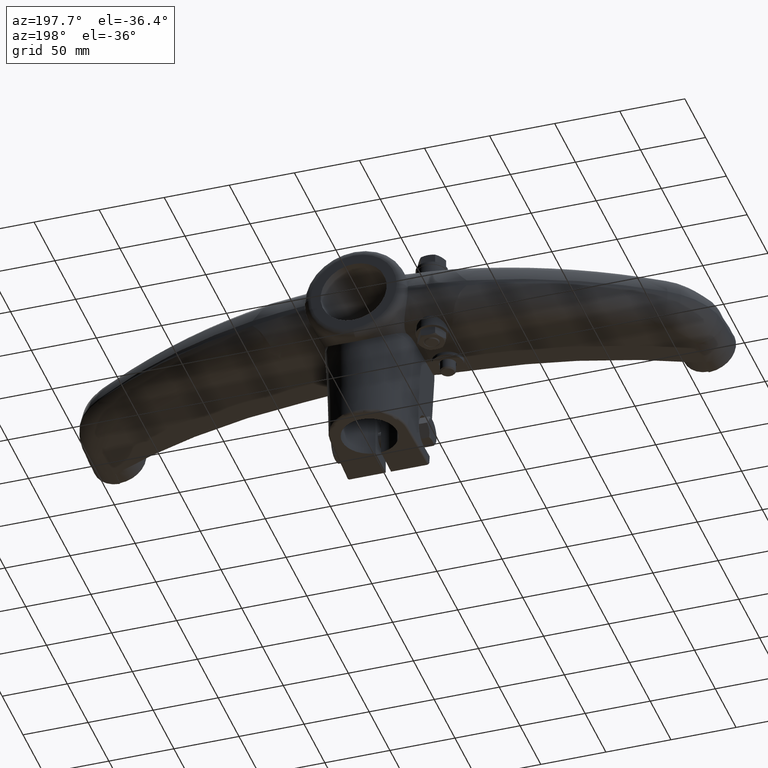
[diagram: clean part render]
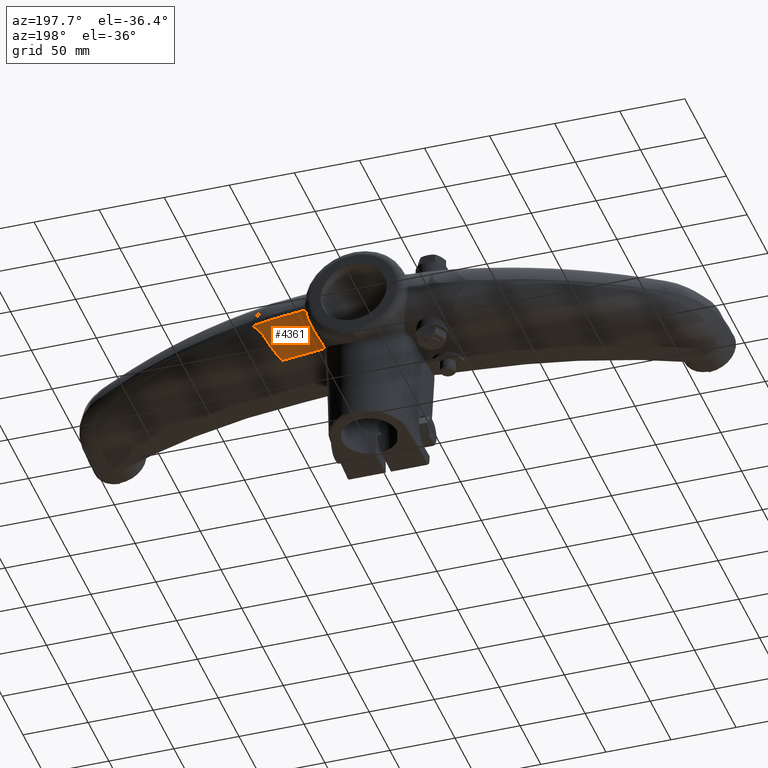
[diagram: same view with one face highlighted and labeled with its STEP entity id]
A machine part, auxiliary view. The second image highlights one B-rep face of the part: STEP entity #4361.
In plain terms, the highlighted face is a freeform B-spline surface patch.
Its self-contained STEP definition (entity closure, byte-faithful):
#13=CARTESIAN_POINT('',(3.120894345981E1,1.720177272451E2,-2.417095241391E1));
#72=CARTESIAN_POINT('',(6.556322026627E1,1.676237391352E2,-2.432439386677E1));
#73=CARTESIAN_POINT('',(5.418535089139E1,1.696030404257E2,-2.425527608238E1));
#74=CARTESIAN_POINT('',(4.271907872146E1,1.710755846995E2,-2.420385302246E1));
#75=CARTESIAN_POINT('',(3.120894345981E1,1.720177272451E2,-2.417095241391E1));
#715=CARTESIAN_POINT('',(3.907753577752E1,1.928456405930E2,-1.982382672974E0));
#717=CARTESIAN_POINT('',(3.907753577752E1,1.928456405930E2,-1.982382672974E0));
#718=CARTESIAN_POINT('',(5.361648857130E1,1.914327125894E2,-2.029009476776E0));
#719=CARTESIAN_POINT('',(6.807860783996E1,1.892304938025E2,-2.101682992746E0));
#720=CARTESIAN_POINT('',(8.237888704673E1,1.862519706577E2,-2.199974635272E0));
#737=CARTESIAN_POINT('',(3.120894345981E1,1.720177272451E2,-2.417095241391E1));
#738=CARTESIAN_POINT('',(3.121590860609E1,1.734261863484E2,-2.412176793792E1));
#739=CARTESIAN_POINT('',(3.144572984740E1,1.763361558493E2,-2.374501578836E1));
#740=CARTESIAN_POINT('',(3.243836874796E1,1.806178943212E2,-2.226924139486E1));
#741=CARTESIAN_POINT('',(3.403975764549E1,1.848444508590E2,-1.965306459349E1));
#742=CARTESIAN_POINT('',(3.590391625104E1,1.884704615319E2,-1.591915638742E1));
#743=CARTESIAN_POINT('',(3.752536254423E1,1.910567516118E2,-1.149229865221E1));
#744=CARTESIAN_POINT('',(3.863739777441E1,1.925437821301E2,-6.793414938378E0));
#745=CARTESIAN_POINT('',(3.899663565069E1,1.928535026503E2,-3.554933203731E0));
#746=CARTESIAN_POINT('',(3.907753577752E1,1.928456405930E2,-1.982382672974E0));
#748=CARTESIAN_POINT('',(8.237888704673E1,1.862519706577E2,-2.199974635272E0));
#749=CARTESIAN_POINT('',(8.114846960910E1,1.865082472490E2,-3.260282742389E0));
#750=CARTESIAN_POINT('',(7.889378963457E1,1.868057701981E2,-5.491619762214E0));
#751=CARTESIAN_POINT('',(7.624275337682E1,1.864938940993E2,-9.024265936477E0));
#752=CARTESIAN_POINT('',(7.394339860819E1,1.853287641705E2,-1.275901501869E1));
#753=CARTESIAN_POINT('',(7.194120611014E1,1.832209551626E2,-1.639515320457E1));
#754=CARTESIAN_POINT('',(7.015398309280E1,1.802462025308E2,-1.959602523436E1));
#755=CARTESIAN_POINT('',(6.852191548658E1,1.765669784458E2,-2.210701121236E1));
#756=CARTESIAN_POINT('',(6.701080225812E1,1.723943613528E2,-2.376544331987E1));
#757=CARTESIAN_POINT('',(6.605544071533E1,1.693968524607E2,-2.424067721273E1));
#758=CARTESIAN_POINT('',(6.560508256717E1,1.679069407090E2,-2.431265706786E1));
#760=CARTESIAN_POINT('',(6.560508256717E1,1.679069407090E2,-2.431265706786E1));
#761=CARTESIAN_POINT('',(6.559586056100E1,1.678766432778E2,-2.431412092367E1));
#762=CARTESIAN_POINT('',(6.558036808507E1,1.678152866984E2,-2.431694567585E1));
#763=CARTESIAN_POINT('',(6.556622574049E1,1.677199097067E2,-2.432090034859E1));
#764=CARTESIAN_POINT('',(6.556319558617E1,1.676559603594E2,-2.432326867662E1));
#765=CARTESIAN_POINT('',(6.556322026627E1,1.676237391352E2,-2.432439386677E1));
#2953=VERTEX_POINT('',#715);
#2954=VERTEX_POINT('',#720);
#2983=VERTEX_POINT('',#760);
#2984=VERTEX_POINT('',#765);
#2998=VERTEX_POINT('',#13);
#4311=CARTESIAN_POINT('',(8.336042436430E1,1.860355402148E2,-1.524089874682E0));
#4312=CARTESIAN_POINT('',(8.229575631098E1,1.862600588162E2,-1.516680942780E0));
#4313=CARTESIAN_POINT('',(7.853527124906E1,1.870372206078E2,-1.491035235615E0));
#4314=CARTESIAN_POINT('',(7.206101448212E1,1.882792509700E2,-1.450049248056E0));
#4315=CARTESIAN_POINT('',(6.392195888688E1,1.896688589268E2,-1.404193330741E0));
#4316=CARTESIAN_POINT('',(5.575585337411E1,1.908918927893E2,-1.363834228197E0));
#4317=CARTESIAN_POINT('',(4.756599965804E1,1.919478367928E2,-1.328988958052E0));
#4318=CARTESIAN_POINT('',(3.961926749538E1,1.928077234997E2,-1.300613418113E0));
#4319=CARTESIAN_POINT('',(3.439896680681E1,1.932700307702E2,-1.285357669024E0));
#4320=CARTESIAN_POINT('',(3.191875698413E1,1.934666039892E2,-1.278870918028E0));
#4321=CARTESIAN_POINT('',(8.335101642446E1,1.864550448172E2,-1.481474259698E1));
#4322=CARTESIAN_POINT('',(8.228641524852E1,1.866792857382E2,-1.480734247720E1));
#4323=CARTESIAN_POINT('',(7.852617736554E1,1.874554848296E2,-1.478172728054E1));
#4324=CARTESIAN_POINT('',(7.205241018110E1,1.886959682952E2,-1.474079024312E1));
#4325=CARTESIAN_POINT('',(6.391407351150E1,1.900838338982E2,-1.469498927551E1));
#4326=CARTESIAN_POINT('',(5.574878122364E1,1.913053251551E2,-1.465467870126E1));
#4327=CARTESIAN_POINT('',(4.755982331844E1,1.923599304442E2,-1.461987544471E1));
#4328=CARTESIAN_POINT('',(3.961402666996E1,1.932187222323E2,-1.459153421308E1));
#4329=CARTESIAN_POINT('',(3.439437478632E1,1.936804388342E2,-1.457629691709E1));
#4330=CARTESIAN_POINT('',(3.191447948074E1,1.938767606103E2,-1.456981804056E1));
#4331=CARTESIAN_POINT('',(8.137719261999E1,1.774285314752E2,-2.437735723837E1));
#4332=CARTESIAN_POINT('',(8.033776251515E1,1.776472749651E2,-2.436996345833E1));
#4333=CARTESIAN_POINT('',(7.666643852749E1,1.784044438451E2,-2.434437021159E1));
#4334=CARTESIAN_POINT('',(7.034579722212E1,1.796145077674E2,-2.430346839663E1));
#4335=CARTESIAN_POINT('',(6.240003506928E1,1.809683311460E2,-2.425770696396E1));
#4336=CARTESIAN_POINT('',(5.442802358886E1,1.821598542734E2,-2.421743130624E1));
#4337=CARTESIAN_POINT('',(4.643296610693E1,1.831885807433E2,-2.418265827828E1));
#4338=CARTESIAN_POINT('',(3.867536146448E1,1.840262952101E2,-2.415434173152E1));
#4339=CARTESIAN_POINT('',(3.357935969141E1,1.844766784204E2,-2.413911771251E1));
#4340=CARTESIAN_POINT('',(3.115821611965E1,1.846681810255E2,-2.413264450164E1));
#4341=CARTESIAN_POINT('',(7.863322632751E1,1.644175436880E2,-2.442601914381E1));
#4342=CARTESIAN_POINT('',(7.762884158697E1,1.646288962479E2,-2.441862539524E1));
#4343=CARTESIAN_POINT('',(7.408130035037E1,1.653604817438E2,-2.439303225692E1));
#4344=CARTESIAN_POINT('',(6.797377153215E1,1.665296589946E2,-2.435213062518E1));
#4345=CARTESIAN_POINT('',(6.029592117495E1,1.678377377209E2,-2.430636939184E1));
#4346=CARTESIAN_POINT('',(5.259271242703E1,1.689889995830E2,-2.426609391244E1));
#4347=CARTESIAN_POINT('',(4.486723942122E1,1.699829652561E2,-2.423132103810E1));
#4348=CARTESIAN_POINT('',(3.737121662753E1,1.707923729530E2,-2.420300461701E1));
#4349=CARTESIAN_POINT('',(3.244705106443E1,1.712275373819E2,-2.418778066556E1));
#4350=CARTESIAN_POINT('',(3.010754837079E1,1.714125689550E2,-2.418130748352E1));
#4351=(BOUNDED_SURFACE()B_SPLINE_SURFACE(3,3,((#4311,#4312,#4313,#4314,#4315,
#4316,#4317,#4318,#4319,#4320),(#4321,#4322,#4323,#4324,#4325,#4326,#4327,#4328,
#4329,#4330),(#4331,#4332,#4333,#4334,#4335,#4336,#4337,#4338,#4339,#4340),(
#4341,#4342,#4343,#4344,#4345,#4346,#4347,#4348,#4349,#4350)),.UNSPECIFIED.,.F.,
.F.,.F.)B_SPLINE_SURFACE_WITH_KNOTS((4,4),(4,1,1,1,1,1,1,4),(0.E0,1.E0),(
1.532141887693E-1,1.764699742372E-1,2.352853009462E-1,2.941048737424E-1,
3.529337294985E-1,4.117559446286E-1,4.705847853068E-1,5.237597474094E-1),
.UNSPECIFIED.)GEOMETRIC_REPRESENTATION_ITEM()RATIONAL_B_SPLINE_SURFACE(((
1.178222576328E0,1.178222576328E0,1.178222576328E0,1.178222576328E0,
1.178222576328E0,1.178222576328E0,1.178222576328E0,1.178222576328E0,
1.178222576328E0,1.178222576328E0),(9.405924745574E-1,9.405924745574E-1,
9.405924745574E-1,9.405924745574E-1,9.405924745574E-1,9.405924745574E-1,
9.405924745574E-1,9.405924745574E-1,9.405924745574E-1,9.405924745574E-1),(
9.405924745574E-1,9.405924745574E-1,9.405924745574E-1,9.405924745574E-1,
9.405924745574E-1,9.405924745574E-1,9.405924745574E-1,9.405924745574E-1,
9.405924745574E-1,9.405924745574E-1),(1.178222576328E0,1.178222576328E0,
1.178222576328E0,1.178222576328E0,1.178222576328E0,1.178222576328E0,
1.178222576328E0,1.178222576328E0,1.178222576328E0,1.178222576328E0)))REPRESENTATION_ITEM('')SURFACE());
#4352=ORIENTED_EDGE('',*,*,#3393,.F.);
#4353=ORIENTED_EDGE('',*,*,#3434,.F.);
#4355=ORIENTED_EDGE('',*,*,#4354,.F.);
#4357=ORIENTED_EDGE('',*,*,#4356,.F.);
#4358=ORIENTED_EDGE('',*,*,#4295,.F.);
#4359=EDGE_LOOP('',(#4352,#4353,#4355,#4357,#4358));
#4360=FACE_OUTER_BOUND('',#4359,.F.);
#76=B_SPLINE_CURVE_WITH_KNOTS('',3,(#72,#73,#74,#75),.UNSPECIFIED.,.F.,.F.,(4,
4),(0.E0,1.E0),.UNSPECIFIED.);
#721=B_SPLINE_CURVE_WITH_KNOTS('',3,(#717,#718,#719,#720),.UNSPECIFIED.,.F.,.F.,
(4,4),(0.E0,1.E0),.UNSPECIFIED.);
#747=B_SPLINE_CURVE_WITH_KNOTS('',3,(#737,#738,#739,#740,#741,#742,#743,#744,
#745,#746),.UNSPECIFIED.,.F.,.F.,(4,1,1,1,1,1,1,4),(0.E0,1.428571428571E-1,
2.857142857143E-1,4.285714285714E-1,5.714285714286E-1,7.142857142857E-1,
8.571428571429E-1,1.E0),.UNSPECIFIED.);
#759=B_SPLINE_CURVE_WITH_KNOTS('',3,(#748,#749,#750,#751,#752,#753,#754,#755,
#756,#757,#758),.UNSPECIFIED.,.F.,.F.,(4,1,1,1,1,1,1,1,4),(0.E0,1.25E-1,2.5E-1,
3.75E-1,5.E-1,6.25E-1,7.5E-1,8.75E-1,1.E0),.UNSPECIFIED.);
#766=B_SPLINE_CURVE_WITH_KNOTS('',3,(#760,#761,#762,#763,#764,#765),
.UNSPECIFIED.,.F.,.F.,(4,1,1,4),(0.E0,3.333333333333E-1,6.666666666667E-1,1.E0),
.UNSPECIFIED.);
#3393=EDGE_CURVE('',#2998,#2953,#747,.T.);
#3434=EDGE_CURVE('',#2984,#2998,#76,.T.);
#4295=EDGE_CURVE('',#2953,#2954,#721,.T.);
#4354=EDGE_CURVE('',#2983,#2984,#766,.T.);
#4356=EDGE_CURVE('',#2954,#2983,#759,.T.);
#4361=ADVANCED_FACE('',(#4360),#4351,.T.);